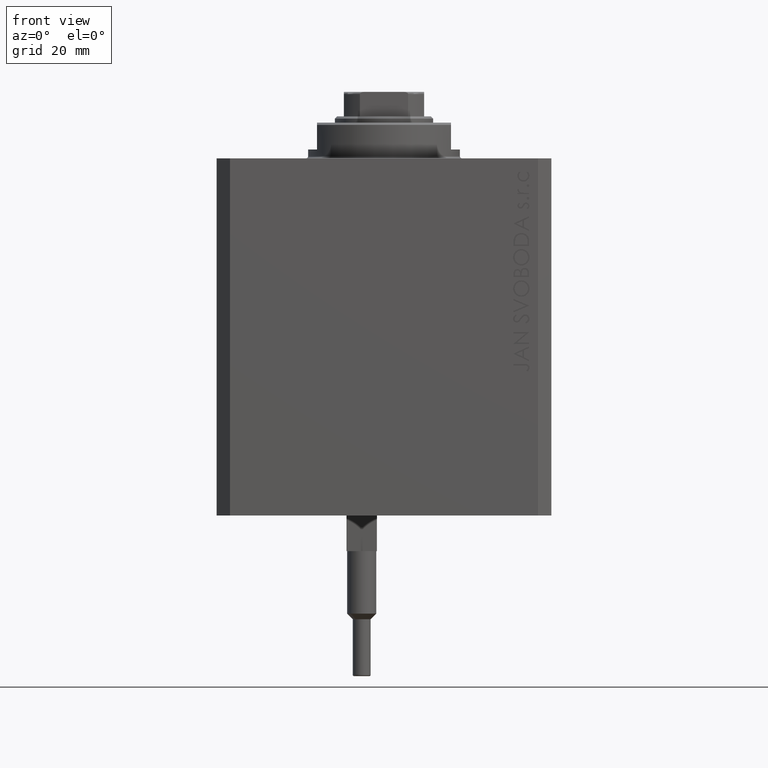
[diagram: clean part render]
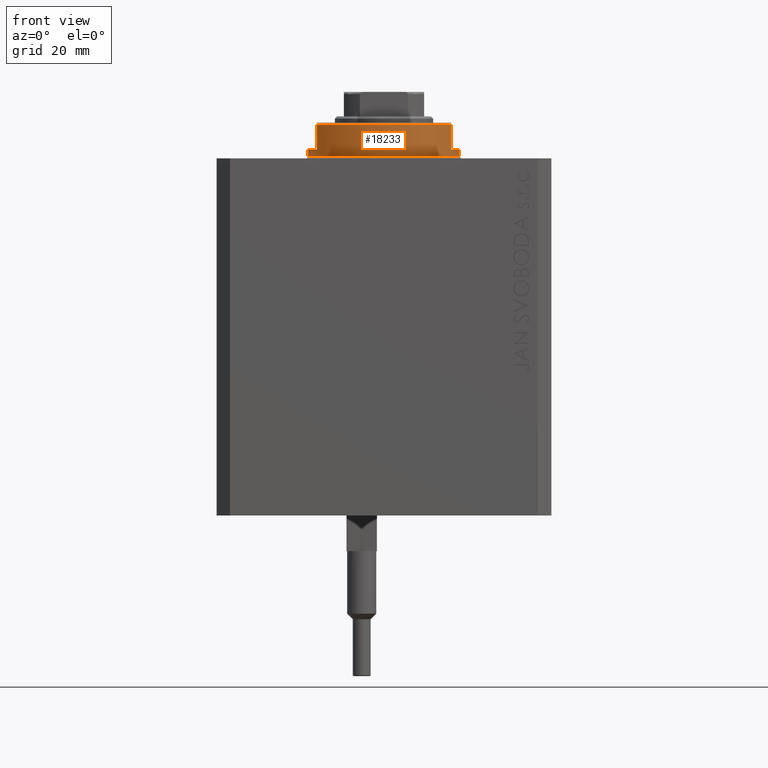
[diagram: same view with one face highlighted and labeled with its STEP entity id]
A machine part, front view. The second image highlights one B-rep face of the part: STEP entity #18233.
In plain terms, the highlighted cylindrical surface (partial cylindrical patch) has radius 17 mm, axis along (0, 0, -1).
Its self-contained STEP definition (entity closure, byte-faithful):
#291 = DIRECTION ( 'NONE',  ( -1.000000000000000000, 0.000000000000000000, 0.000000000000000000 ) ) ;
#815 = ORIENTED_EDGE ( 'NONE', *, *, #20970, .T. ) ;
#1388 = CARTESIAN_POINT ( 'NONE',  ( 0.000000000000000000, 0.000000000000000000, -8.000000000000000000 ) ) ;
#1630 = AXIS2_PLACEMENT_3D ( 'NONE', #21174, #46208, #12702 ) ;
#5321 = AXIS2_PLACEMENT_3D ( 'NONE', #39869, #30172, #291 ) ;
#5357 = VERTEX_POINT ( 'NONE', #19944 ) ;
#6055 = CARTESIAN_POINT ( 'NONE',  ( 0.000000000000000000, 0.000000000000000000, -7.500000000000013323 ) ) ;
#6981 = CARTESIAN_POINT ( 'NONE',  ( 15.00000000000000000, -8.000000000000001776, -7.500000000000013323 ) ) ;
#9236 = CARTESIAN_POINT ( 'NONE',  ( -17.00000000000000000, 2.081899558550500280E-15, -0.5000000000000004441 ) ) ;
#9952 = CIRCLE ( 'NONE', #5321, 17.00000000000000000 ) ;
#10671 = DIRECTION ( 'NONE',  ( -1.000000000000000000, 0.000000000000000000, 0.000000000000000000 ) ) ;
#11158 = DIRECTION ( 'NONE',  ( 0.000000000000000000, 0.000000000000000000, -1.000000000000000000 ) ) ;
#11927 = EDGE_CURVE ( 'NONE', #22044, #12100, #22539, .T. ) ;
#12100 = VERTEX_POINT ( 'NONE', #9236 ) ;
#12310 = DIRECTION ( 'NONE',  ( 1.000000000000000000, 0.000000000000000000, 0.000000000000000000 ) ) ;
#12676 = VECTOR ( 'NONE', #39945, 1000.000000000000000 ) ;
#12702 = DIRECTION ( 'NONE',  ( 1.000000000000000000, 0.000000000000000000, 0.000000000000000000 ) ) ;
#13105 = DIRECTION ( 'NONE',  ( 0.000000000000000000, 0.000000000000000000, 1.000000000000000000 ) ) ;
#14206 = AXIS2_PLACEMENT_3D ( 'NONE', #6055, #13105, #35212 ) ;
#15710 = FACE_OUTER_BOUND ( 'NONE', #32924, .T. ) ;
#16179 = CARTESIAN_POINT ( 'NONE',  ( -15.00000000000000000, -8.000000000000001776, -7.500000000000014211 ) ) ;
#16270 = EDGE_CURVE ( 'NONE', #18875, #5357, #21115, .T. ) ;
#17267 = VECTOR ( 'NONE', #22998, 1000.000000000000000 ) ;
#17355 = VERTEX_POINT ( 'NONE', #16179 ) ;
#18233 = ADVANCED_FACE ( 'NONE', ( #15710 ), #23473, .T. ) ;
#18676 = DIRECTION ( 'NONE',  ( -0.000000000000000000, -0.000000000000000000, 1.000000000000000000 ) ) ;
#18875 = VERTEX_POINT ( 'NONE', #36973 ) ;
#19591 = DIRECTION ( 'NONE',  ( -0.000000000000000000, -0.000000000000000000, 1.000000000000000000 ) ) ;
#19944 = CARTESIAN_POINT ( 'NONE',  ( -17.00000000000000000, 2.081899558550500280E-15, -2.000000000000000000 ) ) ;
#20970 = EDGE_CURVE ( 'NONE', #17355, #30527, #28959, .T. ) ;
#21115 = CIRCLE ( 'NONE', #22573, 17.00000000000000000 ) ;
#21174 = CARTESIAN_POINT ( 'NONE',  ( 0.000000000000000000, 0.000000000000000000, -0.5000000000000004441 ) ) ;
#22044 = VERTEX_POINT ( 'NONE', #44875 ) ;
#22087 = CARTESIAN_POINT ( 'NONE',  ( 17.00000000000000000, 0.000000000000000000, -8.000000000000000000 ) ) ;
#22539 = CIRCLE ( 'NONE', #1630, 17.00000000000000000 ) ;
#22573 = AXIS2_PLACEMENT_3D ( 'NONE', #44422, #11158, #10671 ) ;
#22998 = DIRECTION ( 'NONE',  ( 0.000000000000000000, 0.000000000000000000, -1.000000000000000000 ) ) ;
#23473 = CYLINDRICAL_SURFACE ( 'NONE', #43574, 17.00000000000000000 ) ;
#24294 = DIRECTION ( 'NONE',  ( 0.000000000000000000, 0.000000000000000000, -1.000000000000000000 ) ) ;
#24466 = CARTESIAN_POINT ( 'NONE',  ( 14.99999999999999645, -8.000000000000003553, -2.000000000000000000 ) ) ;
#24973 = EDGE_CURVE ( 'NONE', #18875, #17355, #38165, .T. ) ;
#25133 = LINE ( 'NONE', #31721, #12676 ) ;
#25588 = ORIENTED_EDGE ( 'NONE', *, *, #24973, .T. ) ;
#25706 = ORIENTED_EDGE ( 'NONE', *, *, #29087, .F. ) ;
#25735 = LINE ( 'NONE', #22087, #41834 ) ;
#26482 = EDGE_CURVE ( 'NONE', #5357, #12100, #25133, .T. ) ;
#28959 = CIRCLE ( 'NONE', #14206, 17.00000000000000000 ) ;
#29087 = EDGE_CURVE ( 'NONE', #34915, #30527, #30778, .T. ) ;
#30172 = DIRECTION ( 'NONE',  ( 0.000000000000000000, 0.000000000000000000, -1.000000000000000000 ) ) ;
#30527 = VERTEX_POINT ( 'NONE', #6981 ) ;
#30778 = LINE ( 'NONE', #45586, #17267 ) ;
#31721 = CARTESIAN_POINT ( 'NONE',  ( -17.00000000000000000, 2.081899558550500280E-15, -8.000000000000000000 ) ) ;
#31891 = CARTESIAN_POINT ( 'NONE',  ( 17.00000000000000000, 0.000000000000000000, -2.000000000000000000 ) ) ;
#32878 = ORIENTED_EDGE ( 'NONE', *, *, #16270, .F. ) ;
#32924 = EDGE_LOOP ( 'NONE', ( #41359, #32878, #25588, #815, #25706, #33517, #35258, #38626 ) ) ;
#33517 = ORIENTED_EDGE ( 'NONE', *, *, #45495, .F. ) ;
#34915 = VERTEX_POINT ( 'NONE', #24466 ) ;
#35212 = DIRECTION ( 'NONE',  ( -1.000000000000000000, 0.000000000000000000, 0.000000000000000000 ) ) ;
#35258 = ORIENTED_EDGE ( 'NONE', *, *, #48004, .T. ) ;
#36973 = CARTESIAN_POINT ( 'NONE',  ( -14.99999999999999645, -8.000000000000003553, -2.000000000000000000 ) ) ;
#37684 = VECTOR ( 'NONE', #24294, 1000.000000000000000 ) ;
#38165 = LINE ( 'NONE', #46153, #37684 ) ;
#38626 = ORIENTED_EDGE ( 'NONE', *, *, #11927, .T. ) ;
#39869 = CARTESIAN_POINT ( 'NONE',  ( 0.000000000000000000, 0.000000000000000000, -2.000000000000000000 ) ) ;
#39945 = DIRECTION ( 'NONE',  ( -0.000000000000000000, -0.000000000000000000, 1.000000000000000000 ) ) ;
#41359 = ORIENTED_EDGE ( 'NONE', *, *, #26482, .F. ) ;
#41834 = VECTOR ( 'NONE', #18676, 1000.000000000000000 ) ;
#42951 = VERTEX_POINT ( 'NONE', #31891 ) ;
#43574 = AXIS2_PLACEMENT_3D ( 'NONE', #1388, #19591, #12310 ) ;
#44422 = CARTESIAN_POINT ( 'NONE',  ( 0.000000000000000000, 0.000000000000000000, -2.000000000000000000 ) ) ;
#44875 = CARTESIAN_POINT ( 'NONE',  ( 17.00000000000000000, 0.000000000000000000, -0.5000000000000004441 ) ) ;
#45495 = EDGE_CURVE ( 'NONE', #42951, #34915, #9952, .T. ) ;
#45586 = CARTESIAN_POINT ( 'NONE',  ( 15.00000000000000000, -8.000000000000001776, -8.000000000000000000 ) ) ;
#46153 = CARTESIAN_POINT ( 'NONE',  ( -15.00000000000000000, -8.000000000000001776, -8.000000000000000000 ) ) ;
#46208 = DIRECTION ( 'NONE',  ( -0.000000000000000000, -0.000000000000000000, -1.000000000000000000 ) ) ;
#48004 = EDGE_CURVE ( 'NONE', #42951, #22044, #25735, .T. ) ;